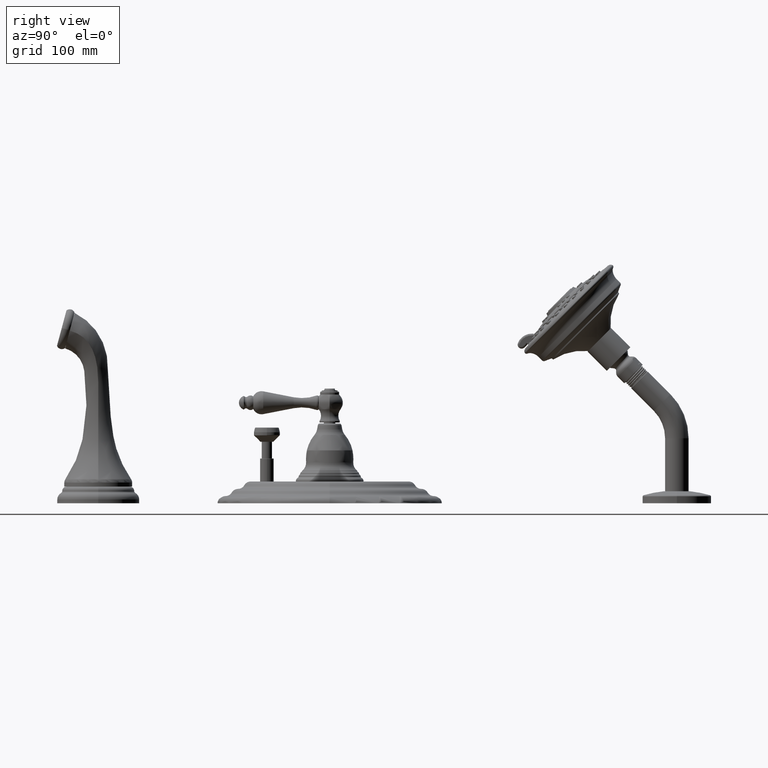
[diagram: clean part render]
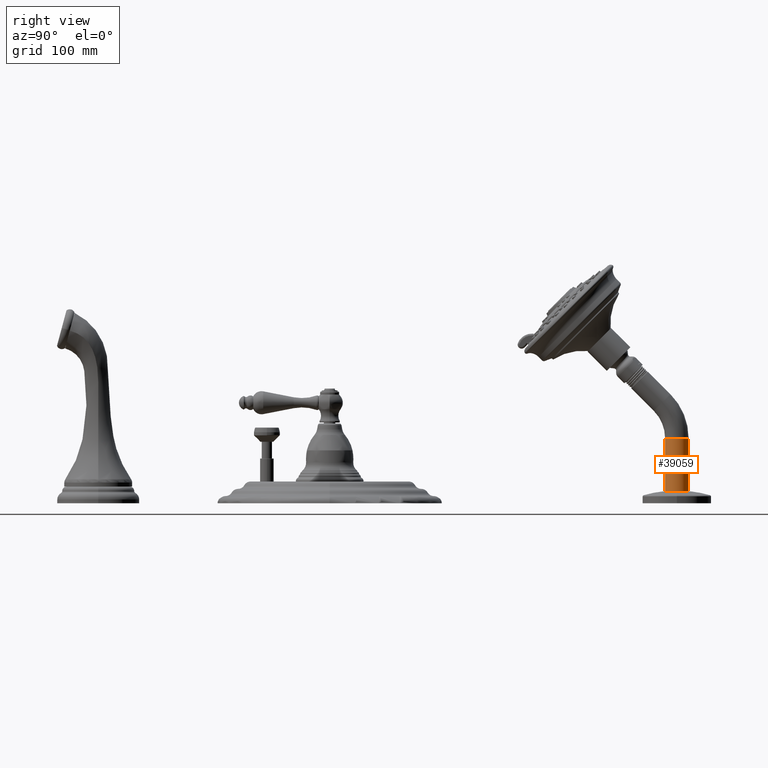
[diagram: same view with one face highlighted and labeled with its STEP entity id]
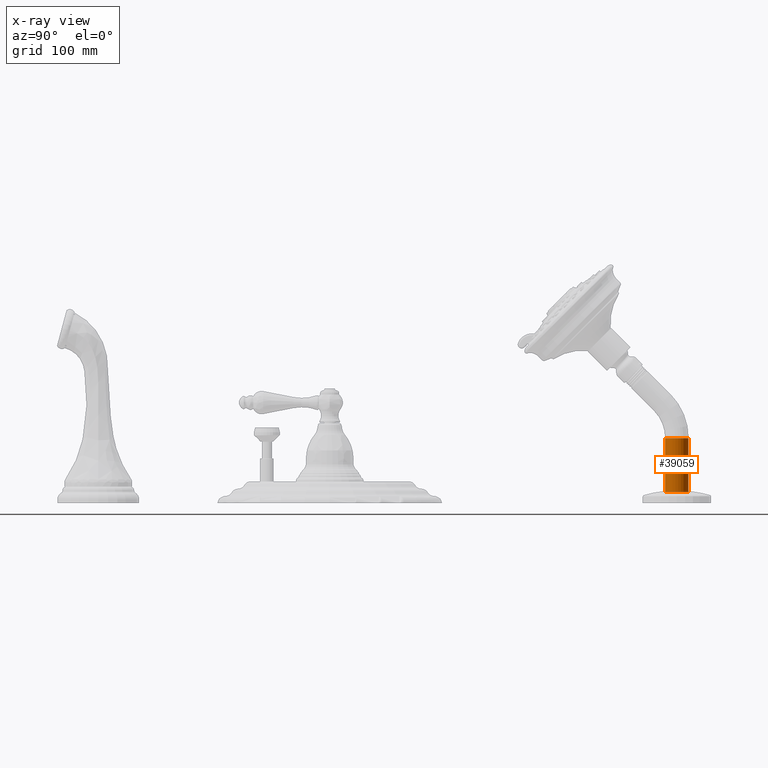
[diagram: x-ray of the same camera — body ghosted, the highlighted face saturated]
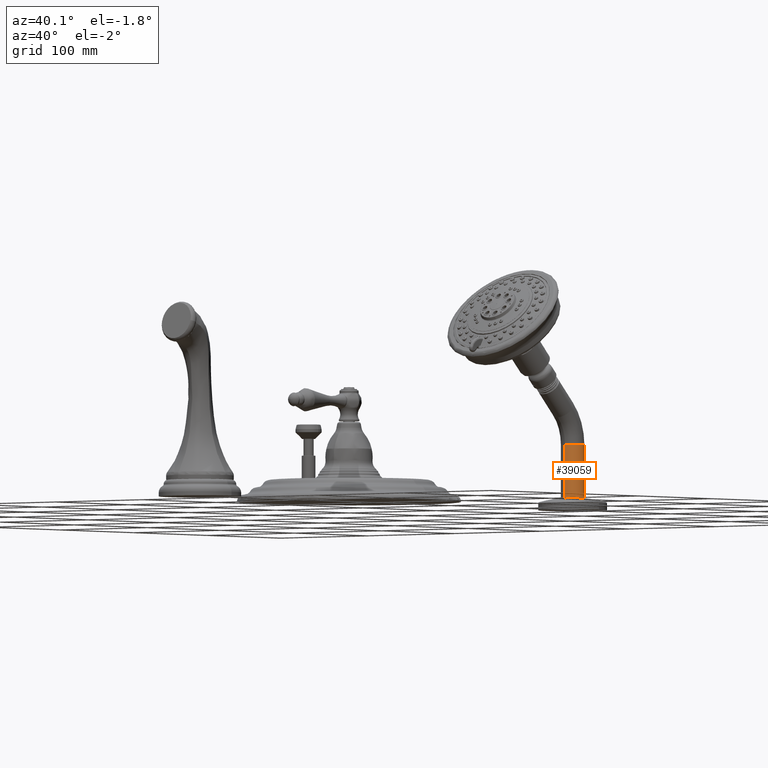
[diagram: same view with one face highlighted and labeled with its STEP entity id]
A machine part, right view. The second image highlights one B-rep face of the part: STEP entity #39059.
The next image is the same camera in x-ray: the body ghosted, the highlighted face saturated — about 0% of this face is hidden behind the body in this view.
A second angle (auxiliary view) of the same face is appended — the face is thin or edge-on in the first view.
In plain terms, the highlighted cylindrical surface (edge-blend (fillet) strip) has radius 10.3187 mm, axis along (0, 0, 1).
Its self-contained STEP definition (entity closure, byte-faithful):
#12957=DIRECTION('',(0.E0,0.E0,1.E0));
#12958=VECTOR('',#12957,1.860528225402E0);
#12959=CARTESIAN_POINT('',(0.E0,1.240625E1,3.894717745985E-1));
#12960=LINE('',#12959,#12958);
#12961=CARTESIAN_POINT('',(0.E0,1.2E1,3.894717745984E-1));
#12962=DIRECTION('',(0.E0,0.E0,1.E0));
#12963=DIRECTION('',(0.E0,-1.E0,0.E0));
#12964=AXIS2_PLACEMENT_3D('',#12961,#12962,#12963);
#13059=DIRECTION('',(0.E0,0.E0,1.E0));
#13060=VECTOR('',#13059,1.860528225402E0);
#13061=CARTESIAN_POINT('',(0.E0,1.159375E1,3.894717745985E-1));
#13062=LINE('',#13061,#13060);
#13063=CARTESIAN_POINT('',(0.E0,1.2E1,2.25E0));
#13064=DIRECTION('',(0.E0,0.E0,1.E0));
#13065=DIRECTION('',(0.E0,-1.E0,0.E0));
#13066=AXIS2_PLACEMENT_3D('',#13063,#13064,#13065);
#34158=CARTESIAN_POINT('',(0.E0,1.159375E1,2.25E0));
#34159=CARTESIAN_POINT('',(0.E0,1.240625E1,2.25E0));
#34160=VERTEX_POINT('',#34158);
#34161=VERTEX_POINT('',#34159);
#34204=CARTESIAN_POINT('',(0.E0,1.159375E1,3.894717745984E-1));
#34205=CARTESIAN_POINT('',(0.E0,1.240625E1,3.894717745984E-1));
#34206=VERTEX_POINT('',#34204);
#34207=VERTEX_POINT('',#34205);
#39047=CARTESIAN_POINT('',(0.E0,1.2E1,-7.5E-1));
#39048=DIRECTION('',(0.E0,0.E0,1.E0));
#39049=DIRECTION('',(0.E0,-1.E0,0.E0));
#39050=AXIS2_PLACEMENT_3D('',#39047,#39048,#39049);
#39051=CYLINDRICAL_SURFACE('',#39050,4.0625E-1);
#39052=ORIENTED_EDGE('',*,*,#38895,.F.);
#39053=ORIENTED_EDGE('',*,*,#38879,.T.);
#39055=ORIENTED_EDGE('',*,*,#39054,.T.);
#39056=ORIENTED_EDGE('',*,*,#38876,.F.);
#39057=EDGE_LOOP('',(#39052,#39053,#39055,#39056));
#39058=FACE_OUTER_BOUND('',#39057,.F.);
#39059=ADVANCED_FACE('',(#39058),#39051,.T.);
#12965=CIRCLE('',#12964,4.0625E-1);
#13067=CIRCLE('',#13066,4.0625E-1);
#38876=EDGE_CURVE('',#34207,#34161,#12960,.T.);
#38879=EDGE_CURVE('',#34206,#34160,#13062,.T.);
#38895=EDGE_CURVE('',#34206,#34207,#12965,.T.);
#39054=EDGE_CURVE('',#34160,#34161,#13067,.T.);